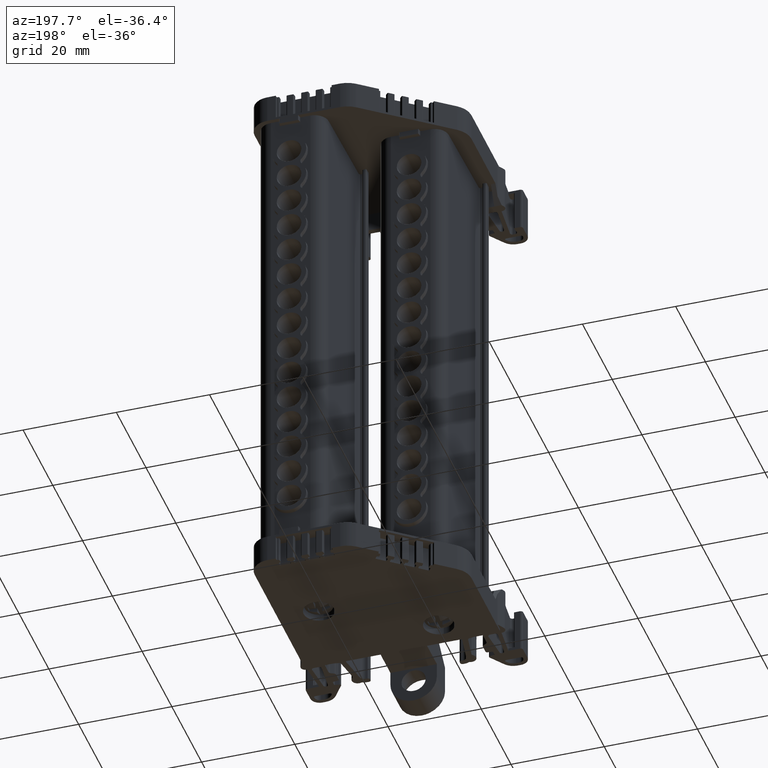
[diagram: clean part render]
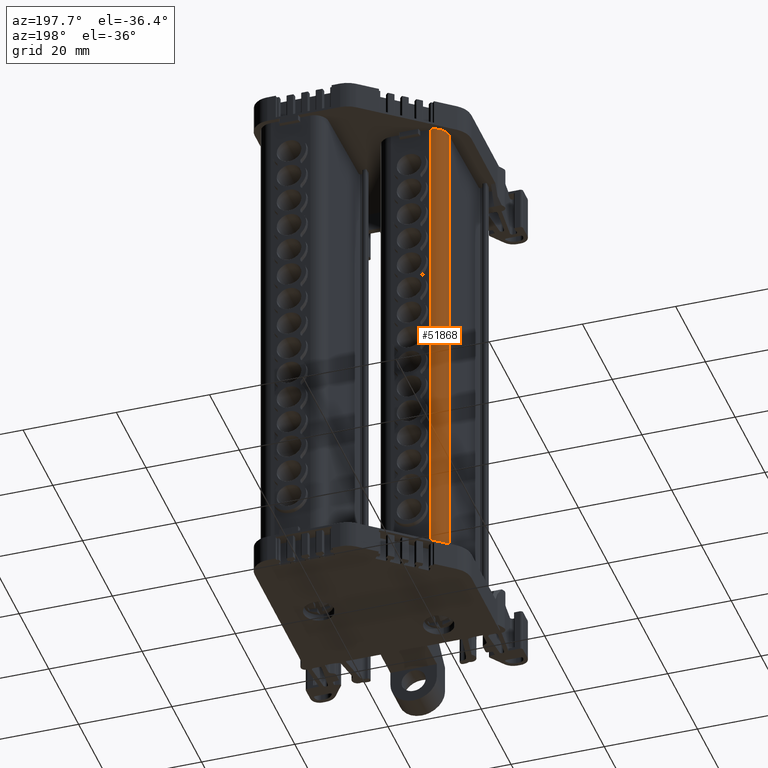
[diagram: same view with one face highlighted and labeled with its STEP entity id]
A machine part, auxiliary view. The second image highlights one B-rep face of the part: STEP entity #51868.
In plain terms, the highlighted cylindrical surface (edge-blend (fillet) strip) has radius 3.0101 mm, axis along (-0, 0, -1).
Its self-contained STEP definition (entity closure, byte-faithful):
#10257 = CARTESIAN_POINT ( 'NONE',  ( -60.73135712902450900, 36.55463528876696000, 69.47218928989244100 ) ) ;
#10268 = CARTESIAN_POINT ( 'NONE',  ( -63.74084705160222300, 33.48480032527697900, -36.09779384098946100 ) ) ;
#10303 = CARTESIAN_POINT ( 'NONE',  ( -60.73135712902486500, 36.55463528876864400, -36.09779384098943200 ) ) ;
#10321 = CARTESIAN_POINT ( 'NONE',  ( -63.74084705160149200, 33.48480032527531600, 69.47218928989242700 ) ) ;
#16199 = CIRCLE ( 'NONE', #16251, 3.010083036540351000 ) ;
#16203 = CIRCLE ( 'NONE', #16226, 3.010083036540351000 ) ;
#16226 = AXIS2_PLACEMENT_3D ( 'NONE', #95702, #95682, #95714 ) ;
#16251 = AXIS2_PLACEMENT_3D ( 'NONE', #95690, #95686, #95717 ) ;
#16351 = VECTOR ( 'NONE', #95810, 1000.000000000000000 ) ;
#17632 = ORIENTED_EDGE ( 'NONE', *, *, #67225, .T. ) ;
#17633 = ORIENTED_EDGE ( 'NONE', *, *, #67230, .T. ) ;
#17708 = ORIENTED_EDGE ( 'NONE', *, *, #67192, .F. ) ;
#17722 = ORIENTED_EDGE ( 'NONE', *, *, #67251, .T. ) ;
#22991 = DIRECTION ( 'NONE',  ( 0.0000000000000000000, 1.000000000000000000, 1.844173418387146900E-014 ) ) ;
#22999 = CARTESIAN_POINT ( 'NONE',  ( -60.73135712902377700, 33.54455225222536500, 146.1334854718477300 ) ) ;
#23006 = CYLINDRICAL_SURFACE ( 'NONE', #66372, 3.010083036540351000 ) ;
#23031 = DIRECTION ( 'NONE',  ( -6.982962677686110500E-015, 1.604252062634190000E-014, -1.000000000000000000 ) ) ;
#23034 = FACE_OUTER_BOUND ( 'NONE', #56234, .T. ) ;
#51868 = ADVANCED_FACE ( 'NONE', ( #23034 ), #23006, .T. ) ;
#56234 = EDGE_LOOP ( 'NONE', ( #17633, #17722, #17632, #17708 ) ) ;
#66372 = AXIS2_PLACEMENT_3D ( 'NONE', #22999, #23031, #22991 ) ;
#67192 = EDGE_CURVE ( 'NONE', #73631, #73596, #83702, .T. ) ;
#67225 = EDGE_CURVE ( 'NONE', #73689, #73596, #16203, .T. ) ;
#67230 = EDGE_CURVE ( 'NONE', #73631, #73580, #16199, .T. ) ;
#67251 = EDGE_CURVE ( 'NONE', #73580, #73689, #95797, .T. ) ;
#73580 = VERTEX_POINT ( 'NONE', #10268 ) ;
#73596 = VERTEX_POINT ( 'NONE', #10257 ) ;
#73631 = VERTEX_POINT ( 'NONE', #10303 ) ;
#73689 = VERTEX_POINT ( 'NONE', #10321 ) ;
#83702 = B_SPLINE_CURVE_WITH_KNOTS ( 'NONE', 3,
 ( #95584, #95627, #95586, #95606 ),
 .UNSPECIFIED., .F., .F.,
 ( 4, 4 ),
 ( 0.0000000000000000000, 1.000000000000000000 ),
 .UNSPECIFIED. ) ;
#95584 = CARTESIAN_POINT ( 'NONE',  ( -60.73135712902486500, 36.55463528876864400, -36.09779384098943200 ) ) ;
#95586 = CARTESIAN_POINT ( 'NONE',  ( -60.73135712902466600, 36.55463528876752800, 34.28219491293181400 ) ) ;
#95606 = CARTESIAN_POINT ( 'NONE',  ( -60.73135712902450900, 36.55463528876696000, 69.47218928989244100 ) ) ;
#95627 = CARTESIAN_POINT ( 'NONE',  ( -60.73135712902473000, 36.55463528876809700, -0.9077994640288161700 ) ) ;
#95682 = DIRECTION ( 'NONE',  ( -6.982962677686110500E-015, 1.604252062634190000E-014, -1.000000000000000000 ) ) ;
#95686 = DIRECTION ( 'NONE',  ( 6.982962677686110500E-015, -1.604252062634190000E-014, 1.000000000000000000 ) ) ;
#95690 = CARTESIAN_POINT ( 'NONE',  ( -60.73135712902504900, 33.54455225222828600, -36.09779384098948900 ) ) ;
#95702 = CARTESIAN_POINT ( 'NONE',  ( -60.73135712902431000, 33.54455225222659500, 69.47218928989241200 ) ) ;
#95714 = DIRECTION ( 'NONE',  ( 0.0000000000000000000, 1.000000000000000000, 1.383130063790360300E-014 ) ) ;
#95717 = DIRECTION ( 'NONE',  ( 0.0000000000000000000, 1.000000000000000000, 1.613651741088753700E-014 ) ) ;
#95797 = LINE ( 'NONE', #95809, #16351 ) ;
#95809 = CARTESIAN_POINT ( 'NONE',  ( -63.74084705160098000, 33.48480032527523800, 146.1334854718477600 ) ) ;
#95810 = DIRECTION ( 'NONE',  ( 6.982962677686110500E-015, -1.604252062634190000E-014, 1.000000000000000000 ) ) ;